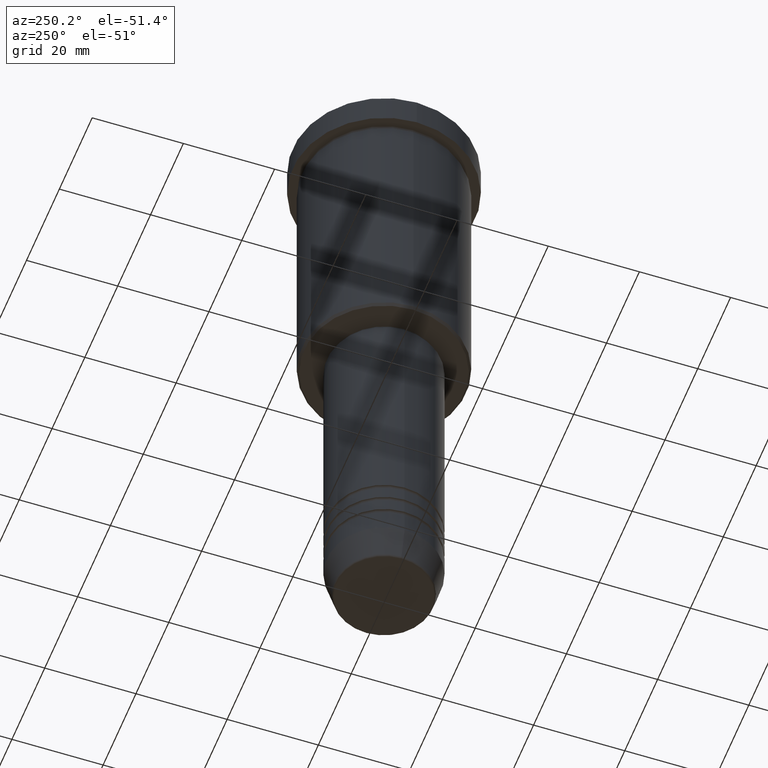
[diagram: clean part render]
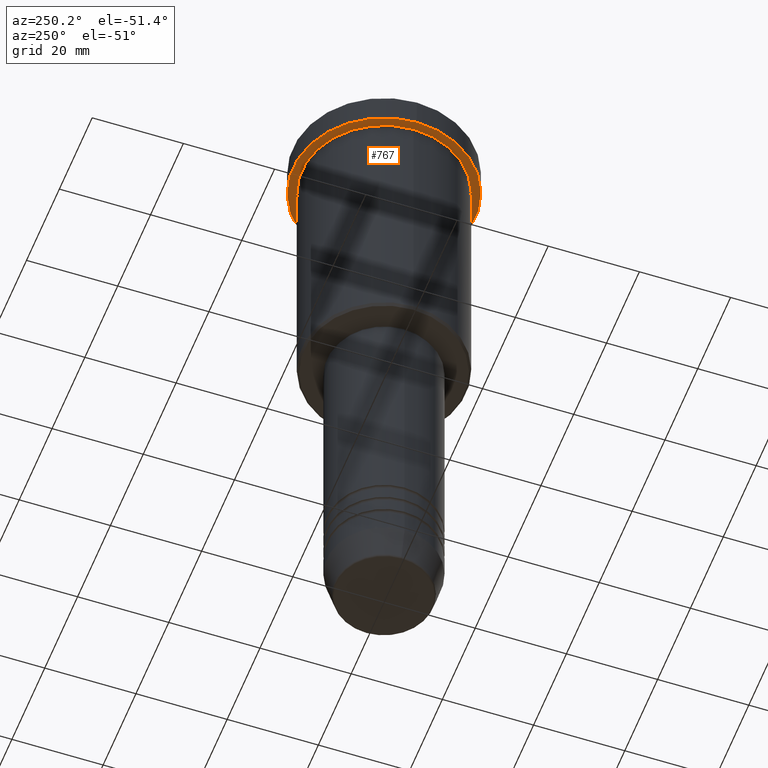
[diagram: same view with one face highlighted and labeled with its STEP entity id]
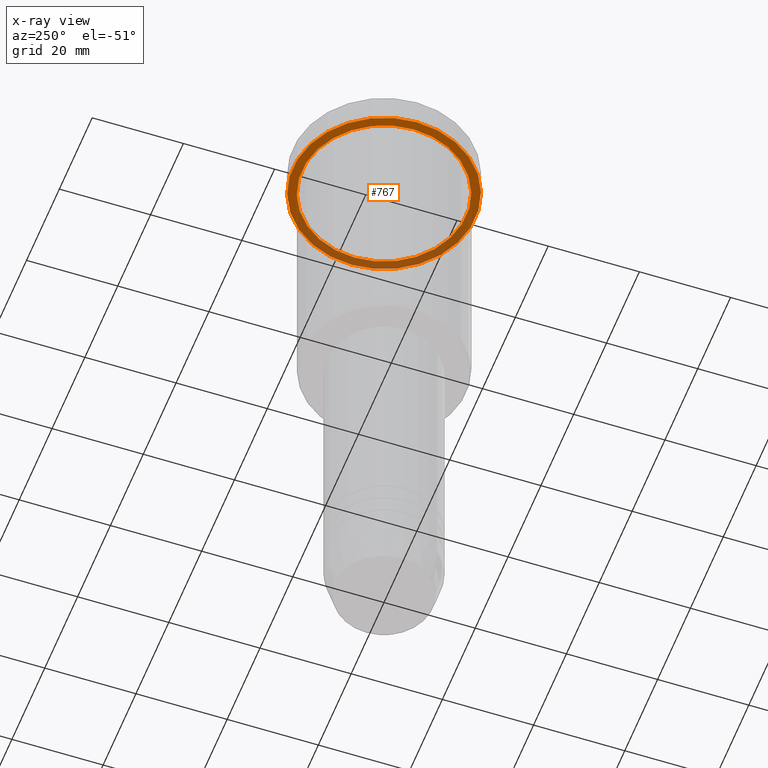
[diagram: x-ray of the same camera — body ghosted, the highlighted face saturated]
A machine part, auxiliary view. The second image highlights one B-rep face of the part: STEP entity #767.
The next image is the same camera in x-ray: the body ghosted, the highlighted face saturated — about 39% of this face is hidden behind the body in this view.
In plain terms, the highlighted planar face has unit normal (0, 0, -1).
Its self-contained STEP definition (entity closure, byte-faithful):
#43 = CARTESIAN_POINT ( 'NONE',  ( 0.000000000000000000, 0.000000000000000000, -6.999999999999995559 ) ) ;
#44 = DIRECTION ( 'NONE',  ( -0.000000000000000000, -0.000000000000000000, 1.000000000000000000 ) ) ;
#107 = AXIS2_PLACEMENT_3D ( 'NONE', #610, #143, #431 ) ;
#143 = DIRECTION ( 'NONE',  ( -0.000000000000000000, -0.000000000000000000, 1.000000000000000000 ) ) ;
#144 = CARTESIAN_POINT ( 'NONE',  ( -20.00000000000000000, 2.449293598294706513E-15, -6.999999999999995559 ) ) ;
#148 = AXIS2_PLACEMENT_3D ( 'NONE', #566, #44, #1127 ) ;
#159 = FACE_OUTER_BOUND ( 'NONE', #367, .T. ) ;
#168 = EDGE_CURVE ( 'NONE', #820, #385, #563, .T. ) ;
#200 = AXIS2_PLACEMENT_3D ( 'NONE', #43, #290, #648 ) ;
#224 = AXIS2_PLACEMENT_3D ( 'NONE', #330, #663, #403 ) ;
#272 = EDGE_CURVE ( 'NONE', #456, #934, #1070, .T. ) ;
#290 = DIRECTION ( 'NONE',  ( -0.000000000000000000, -0.000000000000000000, 1.000000000000000000 ) ) ;
#330 = CARTESIAN_POINT ( 'NONE',  ( 0.000000000000000000, 20.00000000000000000, -6.999999999999995559 ) ) ;
#367 = EDGE_LOOP ( 'NONE', ( #745, #873 ) ) ;
#385 = VERTEX_POINT ( 'NONE', #398 ) ;
#389 = DIRECTION ( 'NONE',  ( 1.000000000000000000, 0.000000000000000000, 0.000000000000000000 ) ) ;
#398 = CARTESIAN_POINT ( 'NONE',  ( -18.00000000000000000, 0.000000000000000000, -6.999999999999995559 ) ) ;
#403 = DIRECTION ( 'NONE',  ( -1.000000000000000000, 0.000000000000000000, -0.000000000000000000 ) ) ;
#430 = CIRCLE ( 'NONE', #887, 20.00000000000000000 ) ;
#431 = DIRECTION ( 'NONE',  ( -1.000000000000000000, 0.000000000000000000, 0.000000000000000000 ) ) ;
#456 = VERTEX_POINT ( 'NONE', #144 ) ;
#512 = ORIENTED_EDGE ( 'NONE', *, *, #715, .T. ) ;
#523 = CIRCLE ( 'NONE', #107, 18.00000000000000000 ) ;
#556 = CARTESIAN_POINT ( 'NONE',  ( 18.00000000000000000, 2.204364238465235428E-15, -6.999999999999995559 ) ) ;
#563 = CIRCLE ( 'NONE', #148, 18.00000000000000000 ) ;
#566 = CARTESIAN_POINT ( 'NONE',  ( 0.000000000000000000, 0.000000000000000000, -6.999999999999995559 ) ) ;
#610 = CARTESIAN_POINT ( 'NONE',  ( 0.000000000000000000, 0.000000000000000000, -6.999999999999995559 ) ) ;
#648 = DIRECTION ( 'NONE',  ( 1.000000000000000000, 0.000000000000000000, 0.000000000000000000 ) ) ;
#652 = DIRECTION ( 'NONE',  ( -0.000000000000000000, -0.000000000000000000, 1.000000000000000000 ) ) ;
#653 = ORIENTED_EDGE ( 'NONE', *, *, #168, .T. ) ;
#663 = DIRECTION ( 'NONE',  ( 0.000000000000000000, 0.000000000000000000, -1.000000000000000000 ) ) ;
#665 = PLANE ( 'NONE',  #224 ) ;
#715 = EDGE_CURVE ( 'NONE', #385, #820, #523, .T. ) ;
#738 = CARTESIAN_POINT ( 'NONE',  ( 0.000000000000000000, 0.000000000000000000, -6.999999999999995559 ) ) ;
#745 = ORIENTED_EDGE ( 'NONE', *, *, #1060, .F. ) ;
#767 = ADVANCED_FACE ( 'NONE', ( #1025, #159 ), #665, .T. ) ;
#820 = VERTEX_POINT ( 'NONE', #556 ) ;
#839 = EDGE_LOOP ( 'NONE', ( #512, #653 ) ) ;
#873 = ORIENTED_EDGE ( 'NONE', *, *, #272, .F. ) ;
#887 = AXIS2_PLACEMENT_3D ( 'NONE', #738, #652, #389 ) ;
#934 = VERTEX_POINT ( 'NONE', #1118 ) ;
#1025 = FACE_BOUND ( 'NONE', #839, .T. ) ;
#1060 = EDGE_CURVE ( 'NONE', #934, #456, #430, .T. ) ;
#1070 = CIRCLE ( 'NONE', #200, 20.00000000000000000 ) ;
#1118 = CARTESIAN_POINT ( 'NONE',  ( 20.00000000000000000, 0.000000000000000000, -6.999999999999995559 ) ) ;
#1127 = DIRECTION ( 'NONE',  ( -1.000000000000000000, 0.000000000000000000, 0.000000000000000000 ) ) ;